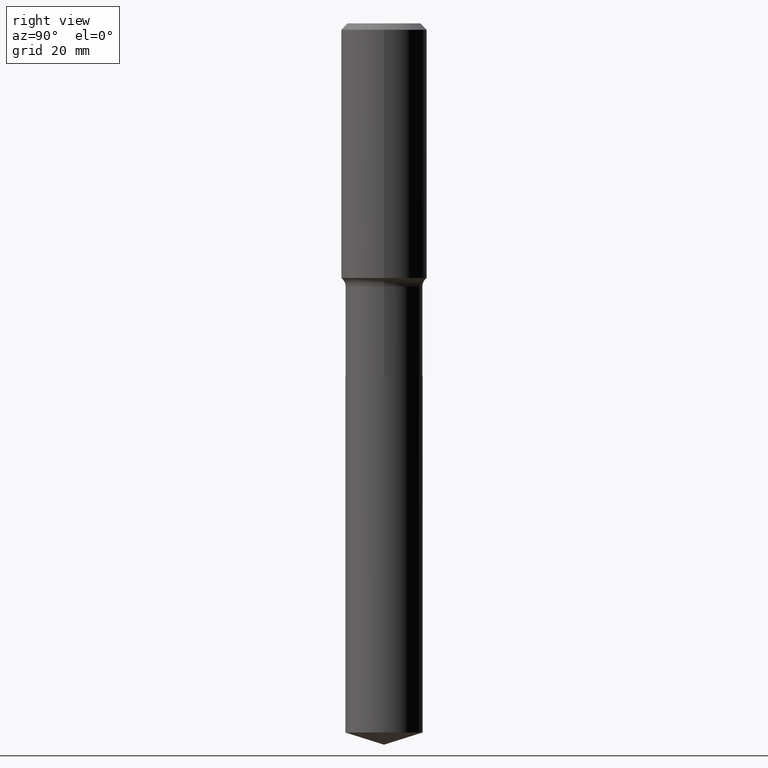
[diagram: clean part render]
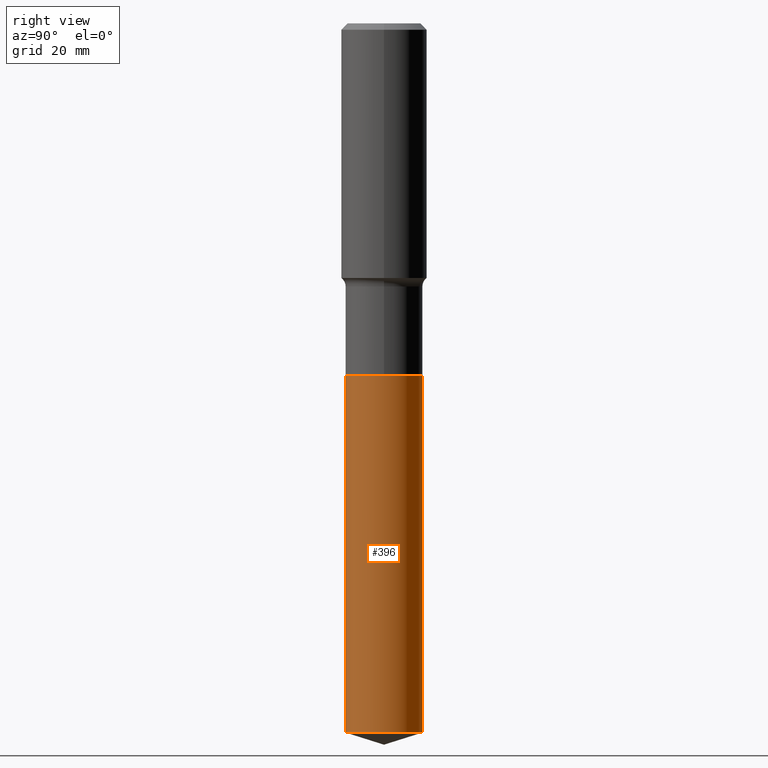
[diagram: same view with one face highlighted and labeled with its STEP entity id]
A machine part, right view. The second image highlights one B-rep face of the part: STEP entity #396.
In plain terms, the highlighted cylindrical surface (partial cylindrical patch) has radius 7.1437 mm, axis along (-0, 0, 1).
Its self-contained STEP definition (entity closure, byte-faithful):
#3 = EDGE_LOOP ( 'NONE', ( #114, #359, #235, #174 ) ) ;
#19 = DIRECTION ( 'NONE',  ( -2.445458559499423150E-29, 3.491496012680292546E-15, 1.000000000000000000 ) ) ;
#20 = VERTEX_POINT ( 'NONE', #247 ) ;
#26 = VERTEX_POINT ( 'NONE', #214 ) ;
#27 = DIRECTION ( 'NONE',  ( -6.982962677686266711E-15, -1.000000000000000000, 3.885294924322507688E-15 ) ) ;
#35 = DIRECTION ( 'NONE',  ( -2.445458559499423150E-29, 3.491496012680292546E-15, 1.000000000000000000 ) ) ;
#45 = AXIS2_PLACEMENT_3D ( 'NONE', #170, #364, #325 ) ;
#46 = AXIS2_PLACEMENT_3D ( 'NONE', #362, #35, #27 ) ;
#51 = DIRECTION ( 'NONE',  ( -2.445458559499422870E-29, 3.491496012680292941E-15, 1.000000000000000000 ) ) ;
#87 = DIRECTION ( 'NONE',  ( -2.445458559499422870E-29, 3.491496012680292941E-15, 1.000000000000000000 ) ) ;
#91 = LINE ( 'NONE', #192, #209 ) ;
#114 = ORIENTED_EDGE ( 'NONE', *, *, #189, .T. ) ;
#133 = VECTOR ( 'NONE', #51, 39.37007874015748143 ) ;
#156 = CARTESIAN_POINT ( 'NONE',  ( 1.998401444325407202E-15, 0.2812499999999818479, -5.161322215627787813 ) ) ;
#157 = EDGE_CURVE ( 'NONE', #165, #26, #226, .T. ) ;
#165 = VERTEX_POINT ( 'NONE', #156 ) ;
#170 = CARTESIAN_POINT ( 'NONE',  ( 6.266513815849411408E-29, -8.946920930785559988E-15, -2.562500000000000000 ) ) ;
#174 = ORIENTED_EDGE ( 'NONE', *, *, #219, .F. ) ;
#183 = CIRCLE ( 'NONE', #490, 0.2812500000000000000 ) ;
#189 = EDGE_CURVE ( 'NONE', #432, #165, #183, .T. ) ;
#192 = CARTESIAN_POINT ( 'NONE',  ( -1.963958253099199798E-15, -0.2812500000000089373, -2.562499999999998668 ) ) ;
#209 = VECTOR ( 'NONE', #87, 39.37007874015748143 ) ;
#213 = CARTESIAN_POINT ( 'NONE',  ( -1.963958253099135506E-15, -0.2812500000000179301, -5.161322215627786036 ) ) ;
#214 = CARTESIAN_POINT ( 'NONE',  ( 1.998401444325408385E-15, 0.2812499999999911182, -2.562500000000000888 ) ) ;
#219 = EDGE_CURVE ( 'NONE', #432, #20, #91, .T. ) ;
#226 = LINE ( 'NONE', #392, #133 ) ;
#235 = ORIENTED_EDGE ( 'NONE', *, *, #375, .F. ) ;
#239 = CIRCLE ( 'NONE', #46, 0.2812500000000000000 ) ;
#246 = FACE_OUTER_BOUND ( 'NONE', #3, .T. ) ;
#247 = CARTESIAN_POINT ( 'NONE',  ( -1.963958253099199798E-15, -0.2812500000000089373, -2.562499999999998668 ) ) ;
#274 = DIRECTION ( 'NONE',  ( -6.982962677686266711E-15, -1.000000000000000000, 3.885294924322507688E-15 ) ) ;
#325 = DIRECTION ( 'NONE',  ( -6.982962677686266711E-15, -1.000000000000000000, 3.885294924322507688E-15 ) ) ;
#359 = ORIENTED_EDGE ( 'NONE', *, *, #157, .T. ) ;
#362 = CARTESIAN_POINT ( 'NONE',  ( 6.266513815849411408E-29, -8.946920930785559988E-15, -2.562500000000000000 ) ) ;
#364 = DIRECTION ( 'NONE',  ( -2.445458559499423150E-29, 3.491496012680292546E-15, 1.000000000000000000 ) ) ;
#375 = EDGE_CURVE ( 'NONE', #20, #26, #239, .T. ) ;
#383 = CARTESIAN_POINT ( 'NONE',  ( 1.262182584767364047E-28, -1.802069833431494357E-14, -5.161322215627786925 ) ) ;
#392 = CARTESIAN_POINT ( 'NONE',  ( 1.998401444325344093E-15, 0.2812499999999910627, -2.562500000000000888 ) ) ;
#394 = CYLINDRICAL_SURFACE ( 'NONE', #45, 0.2812500000000000000 ) ;
#396 = ADVANCED_FACE ( 'NONE', ( #246 ), #394, .T. ) ;
#432 = VERTEX_POINT ( 'NONE', #213 ) ;
#490 = AXIS2_PLACEMENT_3D ( 'NONE', #383, #19, #274 ) ;